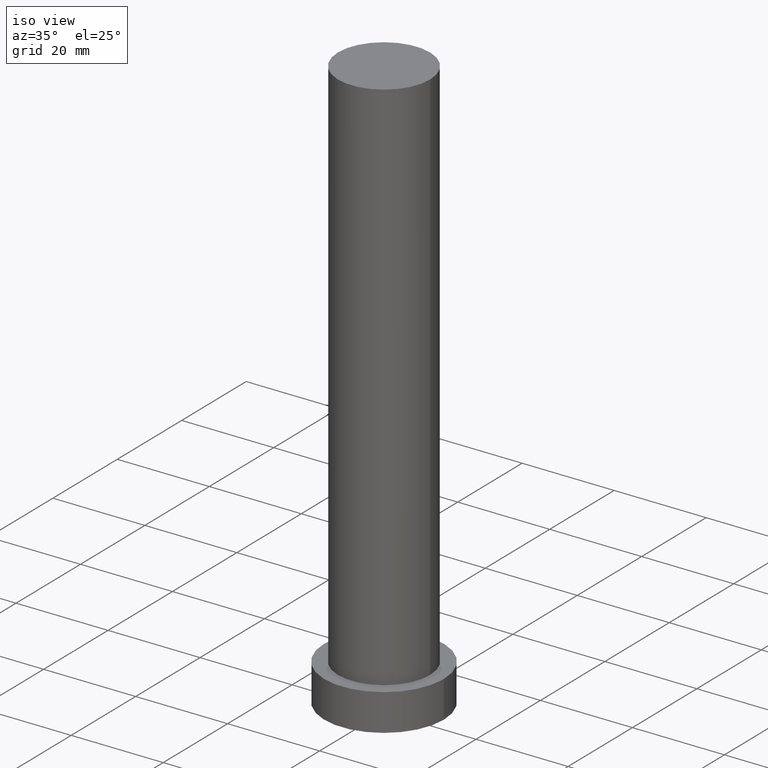
[diagram: clean part render]
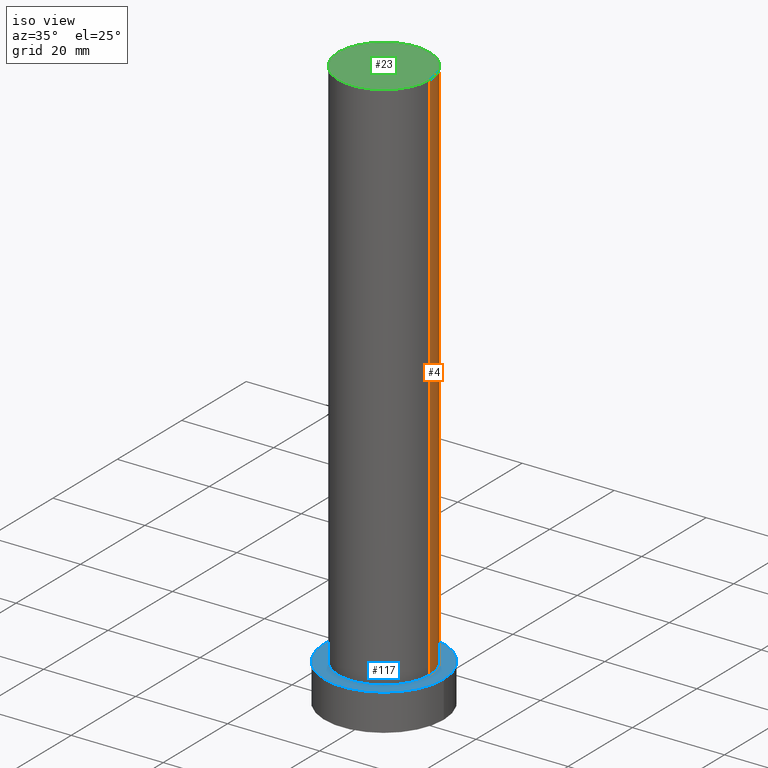
[diagram: same view with three faces highlighted in distinct colors, each labeled with its STEP entity id]
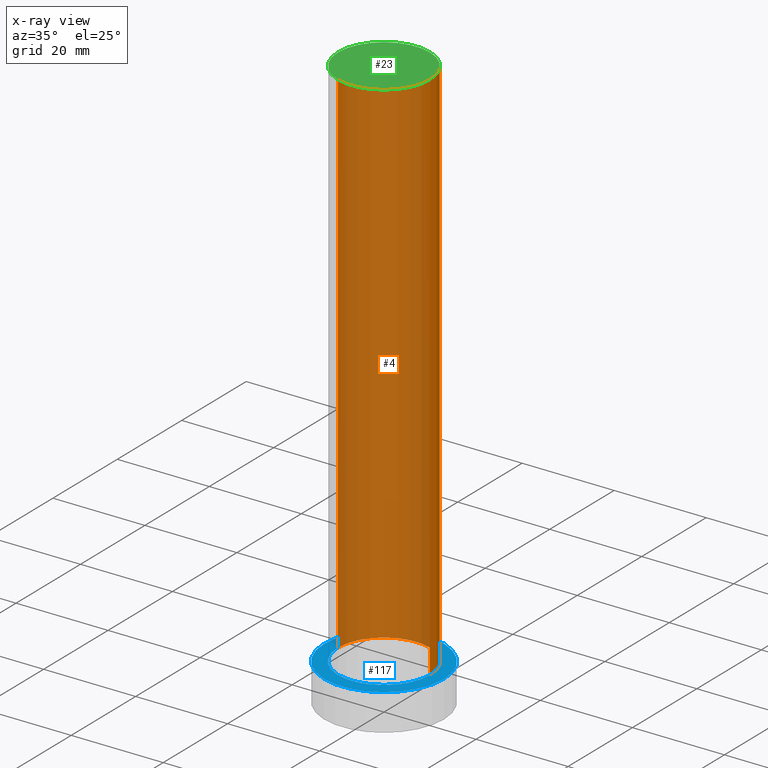
[diagram: x-ray of the same camera — body ghosted, the three highlighted faces saturated]
A machine part, iso view with three faces highlighted in distinct colors.
The next image is the same camera in x-ray (body ghosted, the three faces saturated) — at least one of them is partly hidden behind the body in this view.
Their STEP definitions:

[orange] entity #4 — the highlighted cylindrical surface (partial cylindrical patch) has radius 10 mm, axis along (-0, -0, -1).
#1 = CARTESIAN_POINT ( 'NONE',  ( 0.000000000000000000, 0.000000000000000000, 125.0000000000000000 ) ) ;
#2 = VERTEX_POINT ( 'NONE', #186 ) ;
#4 = ADVANCED_FACE ( 'NONE', ( #153 ), #53, .T. ) ;
#14 = CARTESIAN_POINT ( 'NONE',  ( 0.000000000000000000, 0.000000000000000000, 125.0000000000000000 ) ) ;
#19 = VERTEX_POINT ( 'NONE', #71 ) ;
#26 = DIRECTION ( 'NONE',  ( -0.000000000000000000, -0.000000000000000000, -1.000000000000000000 ) ) ;
#42 = AXIS2_PLACEMENT_3D ( 'NONE', #1, #58, #152 ) ;
#50 = VERTEX_POINT ( 'NONE', #73 ) ;
#53 = CYLINDRICAL_SURFACE ( 'NONE', #204, 10.00000000000000178 ) ;
#54 = VECTOR ( 'NONE', #26, 1000.000000000000000 ) ;
#58 = DIRECTION ( 'NONE',  ( 0.000000000000000000, 0.000000000000000000, 1.000000000000000000 ) ) ;
#60 = DIRECTION ( 'NONE',  ( 1.000000000000000000, 0.000000000000000000, 0.000000000000000000 ) ) ;
#64 = DIRECTION ( 'NONE',  ( -0.000000000000000000, -0.000000000000000000, -1.000000000000000000 ) ) ;
#71 = CARTESIAN_POINT ( 'NONE',  ( 10.00000000000000178, 1.224646799147353454E-15, 125.0000000000000000 ) ) ;
#73 = CARTESIAN_POINT ( 'NONE',  ( 10.00000000000000178, 1.224646799147353454E-15, 8.000000000000000000 ) ) ;
#77 = ORIENTED_EDGE ( 'NONE', *, *, #239, .T. ) ;
#80 = CARTESIAN_POINT ( 'NONE',  ( 0.000000000000000000, 0.000000000000000000, 8.000000000000000000 ) ) ;
#96 = ORIENTED_EDGE ( 'NONE', *, *, #192, .F. ) ;
#106 = CARTESIAN_POINT ( 'NONE',  ( 10.00000000000000178, 1.224646799147353454E-15, 125.0000000000000000 ) ) ;
#107 = EDGE_CURVE ( 'NONE', #19, #2, #123, .T. ) ;
#110 = AXIS2_PLACEMENT_3D ( 'NONE', #80, #155, #60 ) ;
#123 = CIRCLE ( 'NONE', #42, 10.00000000000000178 ) ;
#125 = LINE ( 'NONE', #106, #138 ) ;
#138 = VECTOR ( 'NONE', #64, 1000.000000000000000 ) ;
#152 = DIRECTION ( 'NONE',  ( 1.000000000000000000, 0.000000000000000000, 0.000000000000000000 ) ) ;
#153 = FACE_OUTER_BOUND ( 'NONE', #253, .T. ) ;
#155 = DIRECTION ( 'NONE',  ( 0.000000000000000000, 0.000000000000000000, 1.000000000000000000 ) ) ;
#161 = EDGE_CURVE ( 'NONE', #50, #232, #246, .T. ) ;
#175 = LINE ( 'NONE', #222, #54 ) ;
#186 = CARTESIAN_POINT ( 'NONE',  ( -10.00000000000000178, 0.000000000000000000, 125.0000000000000000 ) ) ;
#190 = DIRECTION ( 'NONE',  ( -1.000000000000000000, 0.000000000000000000, 0.000000000000000000 ) ) ;
#192 = EDGE_CURVE ( 'NONE', #2, #232, #175, .T. ) ;
#204 = AXIS2_PLACEMENT_3D ( 'NONE', #14, #233, #190 ) ;
#213 = ORIENTED_EDGE ( 'NONE', *, *, #107, .F. ) ;
#222 = CARTESIAN_POINT ( 'NONE',  ( -10.00000000000000178, 0.000000000000000000, 125.0000000000000000 ) ) ;
#232 = VERTEX_POINT ( 'NONE', #244 ) ;
#233 = DIRECTION ( 'NONE',  ( -0.000000000000000000, -0.000000000000000000, -1.000000000000000000 ) ) ;
#239 = EDGE_CURVE ( 'NONE', #19, #50, #125, .T. ) ;
#244 = CARTESIAN_POINT ( 'NONE',  ( -10.00000000000000178, 0.000000000000000000, 8.000000000000000000 ) ) ;
#246 = CIRCLE ( 'NONE', #110, 10.00000000000000178 ) ;
#251 = ORIENTED_EDGE ( 'NONE', *, *, #161, .T. ) ;
#253 = EDGE_LOOP ( 'NONE', ( #213, #77, #251, #96 ) ) ;

[blue] entity #117 — the highlighted planar face has unit normal (0, 0, 1).
#3 = DIRECTION ( 'NONE',  ( 1.000000000000000000, 0.000000000000000000, 0.000000000000000000 ) ) ;
#16 = ORIENTED_EDGE ( 'NONE', *, *, #46, .T. ) ;
#33 = EDGE_LOOP ( 'NONE', ( #113, #16 ) ) ;
#36 = DIRECTION ( 'NONE',  ( 0.000000000000000000, 0.000000000000000000, 1.000000000000000000 ) ) ;
#37 = EDGE_LOOP ( 'NONE', ( #99, #172 ) ) ;
#46 = EDGE_CURVE ( 'NONE', #191, #120, #156, .T. ) ;
#49 = CARTESIAN_POINT ( 'NONE',  ( -13.00000000000000178, 0.000000000000000000, 8.000000000000000000 ) ) ;
#50 = VERTEX_POINT ( 'NONE', #73 ) ;
#60 = DIRECTION ( 'NONE',  ( 1.000000000000000000, 0.000000000000000000, 0.000000000000000000 ) ) ;
#69 = CARTESIAN_POINT ( 'NONE',  ( 0.000000000000000000, 0.000000000000000000, 8.000000000000000000 ) ) ;
#73 = CARTESIAN_POINT ( 'NONE',  ( 10.00000000000000178, 1.224646799147353454E-15, 8.000000000000000000 ) ) ;
#80 = CARTESIAN_POINT ( 'NONE',  ( 0.000000000000000000, 0.000000000000000000, 8.000000000000000000 ) ) ;
#84 = AXIS2_PLACEMENT_3D ( 'NONE', #124, #36, #177 ) ;
#90 = CIRCLE ( 'NONE', #84, 13.00000000000000178 ) ;
#99 = ORIENTED_EDGE ( 'NONE', *, *, #154, .F. ) ;
#102 = CARTESIAN_POINT ( 'NONE',  ( 13.00000000000000178, 1.592040838891559293E-15, 8.000000000000000000 ) ) ;
#109 = AXIS2_PLACEMENT_3D ( 'NONE', #69, #145, #228 ) ;
#110 = AXIS2_PLACEMENT_3D ( 'NONE', #80, #155, #60 ) ;
#112 = CARTESIAN_POINT ( 'NONE',  ( 0.000000000000000000, 0.000000000000000000, 8.000000000000000000 ) ) ;
#113 = ORIENTED_EDGE ( 'NONE', *, *, #231, .T. ) ;
#117 = ADVANCED_FACE ( 'NONE', ( #236, #212 ), #182, .T. ) ;
#120 = VERTEX_POINT ( 'NONE', #49 ) ;
#124 = CARTESIAN_POINT ( 'NONE',  ( 0.000000000000000000, 0.000000000000000000, 8.000000000000000000 ) ) ;
#145 = DIRECTION ( 'NONE',  ( 0.000000000000000000, 0.000000000000000000, 1.000000000000000000 ) ) ;
#154 = EDGE_CURVE ( 'NONE', #232, #50, #248, .T. ) ;
#155 = DIRECTION ( 'NONE',  ( 0.000000000000000000, 0.000000000000000000, 1.000000000000000000 ) ) ;
#156 = CIRCLE ( 'NONE', #194, 13.00000000000000178 ) ;
#161 = EDGE_CURVE ( 'NONE', #50, #232, #246, .T. ) ;
#166 = DIRECTION ( 'NONE',  ( 0.000000000000000000, 0.000000000000000000, 1.000000000000000000 ) ) ;
#172 = ORIENTED_EDGE ( 'NONE', *, *, #161, .F. ) ;
#177 = DIRECTION ( 'NONE',  ( 1.000000000000000000, 0.000000000000000000, 0.000000000000000000 ) ) ;
#178 = AXIS2_PLACEMENT_3D ( 'NONE', #219, #195, #3 ) ;
#182 = PLANE ( 'NONE',  #109 ) ;
#191 = VERTEX_POINT ( 'NONE', #102 ) ;
#194 = AXIS2_PLACEMENT_3D ( 'NONE', #112, #166, #252 ) ;
#195 = DIRECTION ( 'NONE',  ( 0.000000000000000000, 0.000000000000000000, 1.000000000000000000 ) ) ;
#212 = FACE_OUTER_BOUND ( 'NONE', #33, .T. ) ;
#219 = CARTESIAN_POINT ( 'NONE',  ( 0.000000000000000000, 0.000000000000000000, 8.000000000000000000 ) ) ;
#228 = DIRECTION ( 'NONE',  ( 1.000000000000000000, 0.000000000000000000, -0.000000000000000000 ) ) ;
#231 = EDGE_CURVE ( 'NONE', #120, #191, #90, .T. ) ;
#232 = VERTEX_POINT ( 'NONE', #244 ) ;
#236 = FACE_BOUND ( 'NONE', #37, .T. ) ;
#244 = CARTESIAN_POINT ( 'NONE',  ( -10.00000000000000178, 0.000000000000000000, 8.000000000000000000 ) ) ;
#246 = CIRCLE ( 'NONE', #110, 10.00000000000000178 ) ;
#248 = CIRCLE ( 'NONE', #178, 10.00000000000000178 ) ;
#252 = DIRECTION ( 'NONE',  ( 1.000000000000000000, 0.000000000000000000, 0.000000000000000000 ) ) ;

[green] entity #23 — the highlighted planar face has unit normal (0, 0, 1).
#1 = CARTESIAN_POINT ( 'NONE',  ( 0.000000000000000000, 0.000000000000000000, 125.0000000000000000 ) ) ;
#2 = VERTEX_POINT ( 'NONE', #186 ) ;
#13 = EDGE_LOOP ( 'NONE', ( #91, #131 ) ) ;
#19 = VERTEX_POINT ( 'NONE', #71 ) ;
#22 = DIRECTION ( 'NONE',  ( 1.000000000000000000, 0.000000000000000000, 0.000000000000000000 ) ) ;
#23 = ADVANCED_FACE ( 'NONE', ( #237 ), #134, .T. ) ;
#42 = AXIS2_PLACEMENT_3D ( 'NONE', #1, #58, #152 ) ;
#58 = DIRECTION ( 'NONE',  ( 0.000000000000000000, 0.000000000000000000, 1.000000000000000000 ) ) ;
#71 = CARTESIAN_POINT ( 'NONE',  ( 10.00000000000000178, 1.224646799147353454E-15, 125.0000000000000000 ) ) ;
#91 = ORIENTED_EDGE ( 'NONE', *, *, #130, .T. ) ;
#94 = AXIS2_PLACEMENT_3D ( 'NONE', #146, #189, #167 ) ;
#107 = EDGE_CURVE ( 'NONE', #19, #2, #123, .T. ) ;
#119 = DIRECTION ( 'NONE',  ( 0.000000000000000000, 0.000000000000000000, 1.000000000000000000 ) ) ;
#123 = CIRCLE ( 'NONE', #42, 10.00000000000000178 ) ;
#130 = EDGE_CURVE ( 'NONE', #2, #19, #165, .T. ) ;
#131 = ORIENTED_EDGE ( 'NONE', *, *, #107, .T. ) ;
#134 = PLANE ( 'NONE',  #94 ) ;
#146 = CARTESIAN_POINT ( 'NONE',  ( 0.000000000000000000, 0.000000000000000000, 125.0000000000000000 ) ) ;
#152 = DIRECTION ( 'NONE',  ( 1.000000000000000000, 0.000000000000000000, 0.000000000000000000 ) ) ;
#165 = CIRCLE ( 'NONE', #187, 10.00000000000000178 ) ;
#167 = DIRECTION ( 'NONE',  ( 1.000000000000000000, 0.000000000000000000, -0.000000000000000000 ) ) ;
#186 = CARTESIAN_POINT ( 'NONE',  ( -10.00000000000000178, 0.000000000000000000, 125.0000000000000000 ) ) ;
#187 = AXIS2_PLACEMENT_3D ( 'NONE', #193, #119, #22 ) ;
#189 = DIRECTION ( 'NONE',  ( 0.000000000000000000, 0.000000000000000000, 1.000000000000000000 ) ) ;
#193 = CARTESIAN_POINT ( 'NONE',  ( 0.000000000000000000, 0.000000000000000000, 125.0000000000000000 ) ) ;
#237 = FACE_OUTER_BOUND ( 'NONE', #13, .T. ) ;